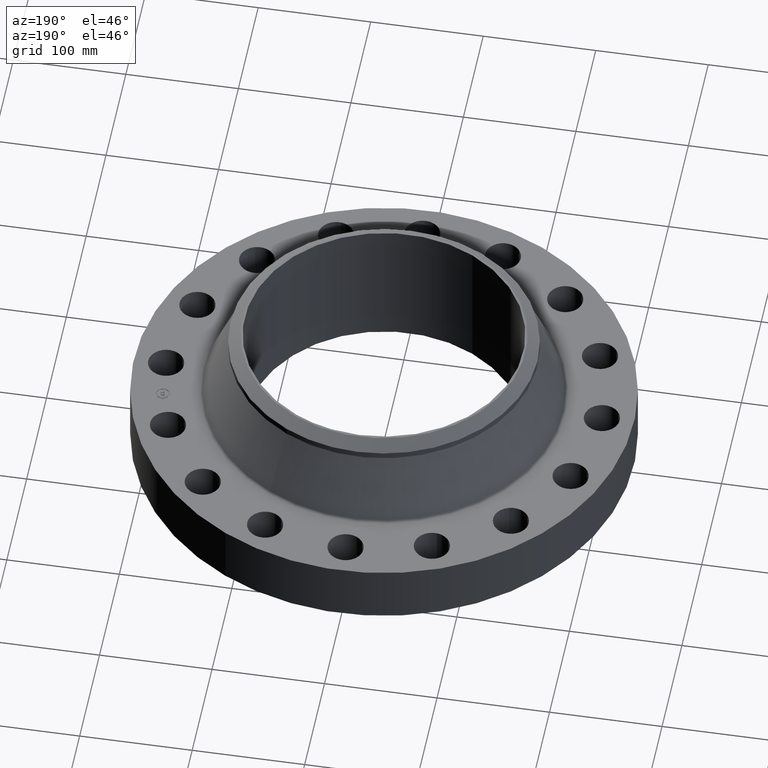
[diagram: clean part render]
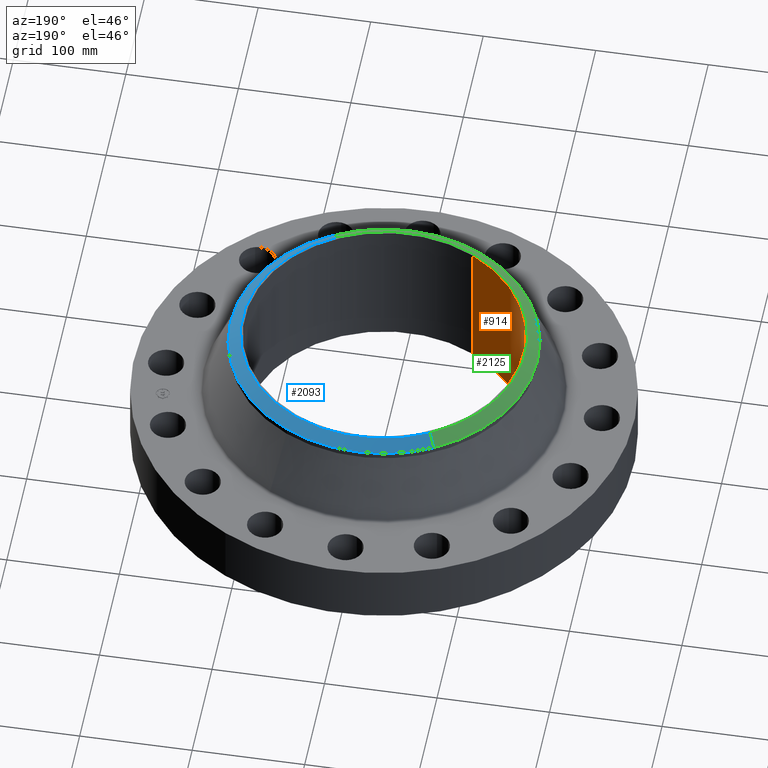
[diagram: same view with three faces highlighted in distinct colors, each labeled with its STEP entity id]
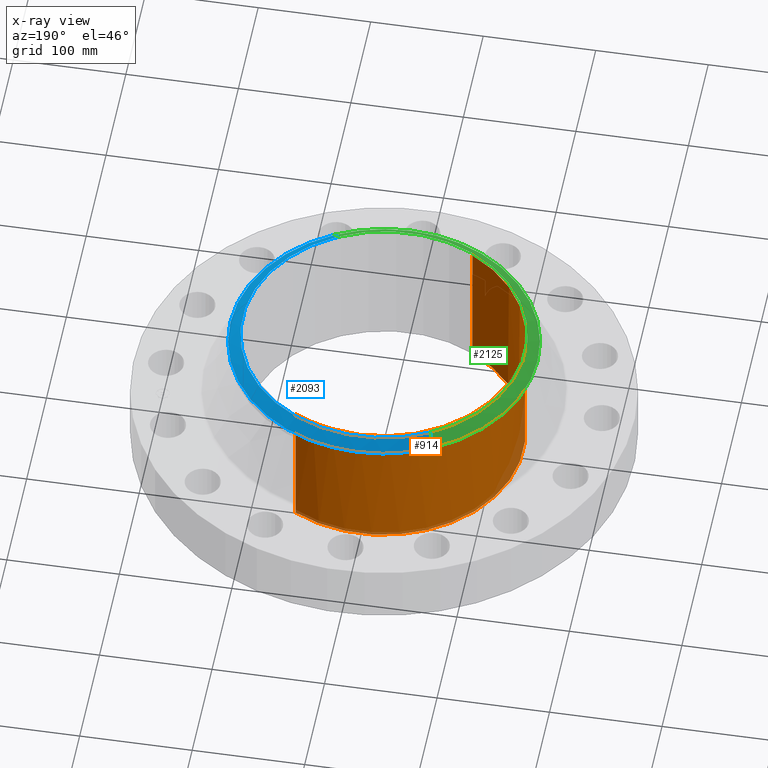
[diagram: x-ray of the same camera — body ghosted, the three highlighted faces saturated]
A machine part, auxiliary view with three faces highlighted in distinct colors.
The next image is the same camera in x-ray (body ghosted, the three faces saturated) — at least one of them is partly hidden behind the body in this view.
Their STEP definitions:

[orange] entity #914 — the highlighted cylindrical surface (partial cylindrical patch) has radius 123.825 mm, axis along (0, 0, -1).
#174=AXIS2_PLACEMENT_3D('Circle Axis2P3D',#172,#173,$) ;
#889=AXIS2_PLACEMENT_3D('Cylinder Axis2P3D',#886,#887,#888) ;
#167=CARTESIAN_POINT('Vertex',(2.33719950071,4.27821498923,1.82125530755E-011)) ;
#169=CARTESIAN_POINT('Vertex',(-2.33719950073,-4.27821498924,0.)) ;
#172=CARTESIAN_POINT('Axis2P3D Location',(4.36653687836E-011,-1.11874114522E-011,0.)) ;
#857=CARTESIAN_POINT('Vertex',(2.33719950073,4.27821498922,4.88000000002)) ;
#859=CARTESIAN_POINT('Vertex',(-2.33719950073,-4.27821498921,4.88000000002)) ;
#862=CARTESIAN_POINT('Line Origine',(2.33719950071,4.27821498923,2.44000000001)) ;
#867=CARTESIAN_POINT('Line Origine',(-2.33719950071,-4.27821498923,2.44000000001)) ;
#886=CARTESIAN_POINT('Axis2P3D Location',(0.,0.,2.44000000001)) ;
#892=CARTESIAN_POINT('Control Point',(-2.33719950071,-4.27821498923,4.88000000002)) ;
#893=CARTESIAN_POINT('Control Point',(-3.00921993974,-3.91108855016,4.88000000002)) ;
#894=CARTESIAN_POINT('Control Point',(-3.60915527103,-3.41201120645,4.88000000002)) ;
#895=CARTESIAN_POINT('Control Point',(-4.10234396839,-2.79974931169,4.88000000002)) ;
#896=CARTESIAN_POINT('Control Point',(-4.82207969416,-1.41483672528,4.88000000002)) ;
#897=CARTESIAN_POINT('Control Point',(-4.96471442806,0.139401904933,4.88000000001)) ;
#898=CARTESIAN_POINT('Control Point',(-4.88051696273,0.921073514895,4.88000000001)) ;
#899=CARTESIAN_POINT('Control Point',(-4.41016589388,2.40928460845,4.88000000001)) ;
#900=CARTESIAN_POINT('Control Point',(-3.41201120645,3.60915527102,4.88000000001)) ;
#901=CARTESIAN_POINT('Control Point',(-2.79974931169,4.10234396839,4.88000000001)) ;
#902=CARTESIAN_POINT('Control Point',(-1.41483672528,4.82207969416,4.88000000001)) ;
#903=CARTESIAN_POINT('Control Point',(0.139401904931,4.96471442806,4.88)) ;
#904=CARTESIAN_POINT('Control Point',(0.921073514892,4.88051696273,4.88)) ;
#905=CARTESIAN_POINT('Control Point',(1.66517906167,4.6453414283,4.88)) ;
#906=CARTESIAN_POINT('Control Point',(2.3371995007,4.27821498923,4.88)) ;
#173=DIRECTION('Axis2P3D Direction',(0.,0.,-0.0393700787402)) ;
#863=DIRECTION('Vector Direction',(0.,0.,-0.0393700787402)) ;
#868=DIRECTION('Vector Direction',(0.,0.,-0.0393700787402)) ;
#887=DIRECTION('Axis2P3D Direction',(0.,0.,-0.0393700787402)) ;
#888=DIRECTION('Axis2P3D XDirection',(-0.0188750212049,-0.0345504945626,0.)) ;
#864=VECTOR('Line Direction',#863,0.0393700787402) ;
#869=VECTOR('Line Direction',#868,0.0393700787402) ;
#909=ORIENTED_EDGE('',*,*,#907,.F.) ;
#910=ORIENTED_EDGE('',*,*,#871,.T.) ;
#911=ORIENTED_EDGE('',*,*,#176,.T.) ;
#912=ORIENTED_EDGE('',*,*,#866,.F.) ;
#914=ADVANCED_FACE('PartBody',(#913),#890,.F.) ;
#891=B_SPLINE_CURVE_WITH_KNOTS('',5,(#892,#893,#894,#895,#896,#897,#898,#899,#900,#901,#902,#903,#904,#905,#906),.UNSPECIFIED.,.F.,.U.,(6,3,3,3,6),(-194.503855166,-97.2519275831,0.,97.2519275831,194.503855166),.UNSPECIFIED.) ;
#175=CIRCLE('generated circle',#174,4.87500000005) ;
#890=CYLINDRICAL_SURFACE('generated cylinder',#889,4.87500000002) ;
#176=EDGE_CURVE('',#170,#168,#175,.T.) ;
#866=EDGE_CURVE('',#858,#168,#865,.T.) ;
#871=EDGE_CURVE('',#860,#170,#870,.T.) ;
#907=EDGE_CURVE('',#860,#858,#891,.T.) ;
#908=EDGE_LOOP('',(#909,#910,#911,#912)) ;
#913=FACE_OUTER_BOUND('',#908,.T.) ;
#865=LINE('Line',#862,#864) ;
#870=LINE('Line',#867,#869) ;
#168=VERTEX_POINT('',#167) ;
#170=VERTEX_POINT('',#169) ;
#858=VERTEX_POINT('',#857) ;
#860=VERTEX_POINT('',#859) ;

[blue] entity #2093 — the highlighted conical surface has half-angle 52.5 deg.
#1786=AXIS2_PLACEMENT_3D('Circle Axis2P3D',#1784,#1785,$) ;
#2058=AXIS2_PLACEMENT_3D('Cone Axis2P3D',#2055,#2056,#2057) ;
#2076=AXIS2_PLACEMENT_3D('Circle Axis2P3D',#2074,#2075,$) ;
#2083=AXIS2_PLACEMENT_3D('Circle Axis2P3D',#2081,#2082,$) ;
#1784=CARTESIAN_POINT('Axis2P3D Location',(0.,5.33410586042E-012,4.88000000002)) ;
#1788=CARTESIAN_POINT('Vertex',(2.37494954312,-4.34731597836,4.88000000002)) ;
#1790=CARTESIAN_POINT('Vertex',(-2.37494954312,4.34731597836,4.88000000002)) ;
#2055=CARTESIAN_POINT('Axis2P3D Location',(0.,0.,4.88000000002)) ;
#2060=CARTESIAN_POINT('Line Origine',(-2.47593090656,4.53216112427,4.71837797696)) ;
#2064=CARTESIAN_POINT('Vertex',(-2.57691227001,4.71700627018,4.5567559539)) ;
#2067=CARTESIAN_POINT('Line Origine',(2.47593090656,-4.53216112427,4.71837797696)) ;
#2071=CARTESIAN_POINT('Vertex',(2.57691227001,-4.71700627018,4.5567559539)) ;
#2074=CARTESIAN_POINT('Axis2P3D Location',(0.,0.,4.5567559539)) ;
#2078=CARTESIAN_POINT('Vertex',(2.57691227001,4.71700627018,4.5567559539)) ;
#2081=CARTESIAN_POINT('Axis2P3D Location',(0.,0.,4.5567559539)) ;
#1785=DIRECTION('Axis2P3D Direction',(0.,0.,-0.0393700787402)) ;
#2056=DIRECTION('Axis2P3D Direction',(-0.,-0.,-0.0393700787402)) ;
#2057=DIRECTION('Axis2P3D XDirection',(-0.0188750212049,0.0345504945626,0.)) ;
#2061=DIRECTION('Vector Direction',(-0.014974561121,0.02741075027,-0.023966985394)) ;
#2068=DIRECTION('Vector Direction',(0.014974561121,-0.02741075027,-0.023966985394)) ;
#2075=DIRECTION('Axis2P3D Direction',(-0.,0.,-0.0393700787402)) ;
#2082=DIRECTION('Axis2P3D Direction',(-0.,0.,-0.0393700787402)) ;
#2062=VECTOR('Line Direction',#2061,0.0393700787402) ;
#2069=VECTOR('Line Direction',#2068,0.0393700787402) ;
#2087=ORIENTED_EDGE('',*,*,#2066,.F.) ;
#2088=ORIENTED_EDGE('',*,*,#1792,.F.) ;
#2089=ORIENTED_EDGE('',*,*,#2073,.T.) ;
#2090=ORIENTED_EDGE('',*,*,#2080,.T.) ;
#2091=ORIENTED_EDGE('',*,*,#2085,.F.) ;
#2093=ADVANCED_FACE('PartBody',(#2092),#2059,.T.) ;
#1787=CIRCLE('generated circle',#1786,4.9537401575) ;
#2077=CIRCLE('generated circle',#2076,5.37500000002) ;
#2084=CIRCLE('generated circle',#2083,5.37500000002) ;
#2059=CONICAL_SURFACE('Cone',#2058,4.9537401575,0.916297857297) ;
#1792=EDGE_CURVE('',#1789,#1791,#1787,.F.) ;
#2066=EDGE_CURVE('',#1791,#2065,#2063,.T.) ;
#2073=EDGE_CURVE('',#1789,#2072,#2070,.T.) ;
#2080=EDGE_CURVE('',#2072,#2079,#2077,.F.) ;
#2085=EDGE_CURVE('',#2065,#2079,#2084,.T.) ;
#2086=EDGE_LOOP('',(#2087,#2088,#2089,#2090,#2091)) ;
#2092=FACE_OUTER_BOUND('',#2086,.T.) ;
#2063=LINE('Line',#2060,#2062) ;
#2070=LINE('Line',#2067,#2069) ;
#1789=VERTEX_POINT('',#1788) ;
#1791=VERTEX_POINT('',#1790) ;
#2065=VERTEX_POINT('',#2064) ;
#2072=VERTEX_POINT('',#2071) ;
#2079=VERTEX_POINT('',#2078) ;

[green] entity #2125 — the highlighted conical surface has half-angle 52.5 deg.
#1795=AXIS2_PLACEMENT_3D('Circle Axis2P3D',#1793,#1794,$) ;
#2104=AXIS2_PLACEMENT_3D('Cone Axis2P3D',#2101,#2102,#2103) ;
#2108=AXIS2_PLACEMENT_3D('Circle Axis2P3D',#2106,#2107,$) ;
#2115=AXIS2_PLACEMENT_3D('Circle Axis2P3D',#2113,#2114,$) ;
#1788=CARTESIAN_POINT('Vertex',(2.37494954312,-4.34731597836,4.88000000002)) ;
#1790=CARTESIAN_POINT('Vertex',(-2.37494954312,4.34731597836,4.88000000002)) ;
#1793=CARTESIAN_POINT('Axis2P3D Location',(0.,5.33410586042E-012,4.88000000002)) ;
#2060=CARTESIAN_POINT('Line Origine',(-2.47593090656,4.53216112427,4.71837797696)) ;
#2064=CARTESIAN_POINT('Vertex',(-2.57691227001,4.71700627018,4.5567559539)) ;
#2067=CARTESIAN_POINT('Line Origine',(2.47593090656,-4.53216112427,4.71837797696)) ;
#2071=CARTESIAN_POINT('Vertex',(2.57691227001,-4.71700627018,4.5567559539)) ;
#2101=CARTESIAN_POINT('Axis2P3D Location',(0.,0.,4.88000000002)) ;
#2106=CARTESIAN_POINT('Axis2P3D Location',(0.,0.,4.5567559539)) ;
#2110=CARTESIAN_POINT('Vertex',(-2.57691227001,-4.71700627018,4.5567559539)) ;
#2113=CARTESIAN_POINT('Axis2P3D Location',(0.,0.,4.5567559539)) ;
#1794=DIRECTION('Axis2P3D Direction',(0.,0.,-0.0393700787402)) ;
#2061=DIRECTION('Vector Direction',(-0.014974561121,0.02741075027,-0.023966985394)) ;
#2068=DIRECTION('Vector Direction',(0.014974561121,-0.02741075027,-0.023966985394)) ;
#2102=DIRECTION('Axis2P3D Direction',(-0.,-0.,-0.0393700787402)) ;
#2103=DIRECTION('Axis2P3D XDirection',(0.0188750212049,-0.0345504945626,0.)) ;
#2107=DIRECTION('Axis2P3D Direction',(-0.,0.,-0.0393700787402)) ;
#2114=DIRECTION('Axis2P3D Direction',(-0.,0.,-0.0393700787402)) ;
#2062=VECTOR('Line Direction',#2061,0.0393700787402) ;
#2069=VECTOR('Line Direction',#2068,0.0393700787402) ;
#2119=ORIENTED_EDGE('',*,*,#2073,.F.) ;
#2120=ORIENTED_EDGE('',*,*,#1797,.F.) ;
#2121=ORIENTED_EDGE('',*,*,#2066,.T.) ;
#2122=ORIENTED_EDGE('',*,*,#2112,.T.) ;
#2123=ORIENTED_EDGE('',*,*,#2117,.F.) ;
#2125=ADVANCED_FACE('PartBody',(#2124),#2105,.T.) ;
#1796=CIRCLE('generated circle',#1795,4.9537401575) ;
#2109=CIRCLE('generated circle',#2108,5.37500000002) ;
#2116=CIRCLE('generated circle',#2115,5.37500000002) ;
#2105=CONICAL_SURFACE('Cone',#2104,4.9537401575,0.916297857297) ;
#1797=EDGE_CURVE('',#1791,#1789,#1796,.F.) ;
#2066=EDGE_CURVE('',#1791,#2065,#2063,.T.) ;
#2073=EDGE_CURVE('',#1789,#2072,#2070,.T.) ;
#2112=EDGE_CURVE('',#2065,#2111,#2109,.F.) ;
#2117=EDGE_CURVE('',#2072,#2111,#2116,.T.) ;
#2118=EDGE_LOOP('',(#2119,#2120,#2121,#2122,#2123)) ;
#2124=FACE_OUTER_BOUND('',#2118,.T.) ;
#2063=LINE('Line',#2060,#2062) ;
#2070=LINE('Line',#2067,#2069) ;
#1789=VERTEX_POINT('',#1788) ;
#1791=VERTEX_POINT('',#1790) ;
#2065=VERTEX_POINT('',#2064) ;
#2072=VERTEX_POINT('',#2071) ;
#2111=VERTEX_POINT('',#2110) ;